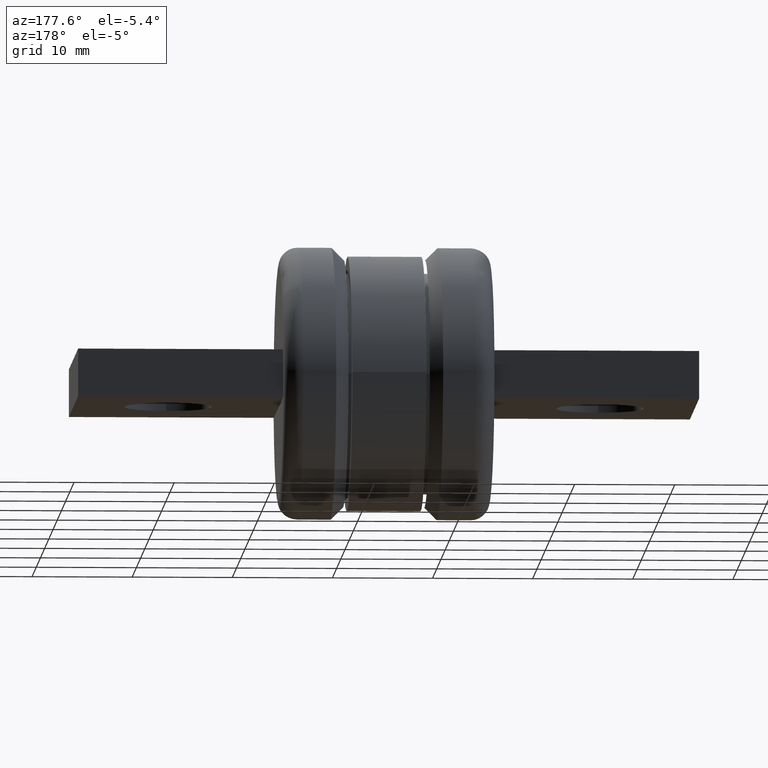
[diagram: clean part render]
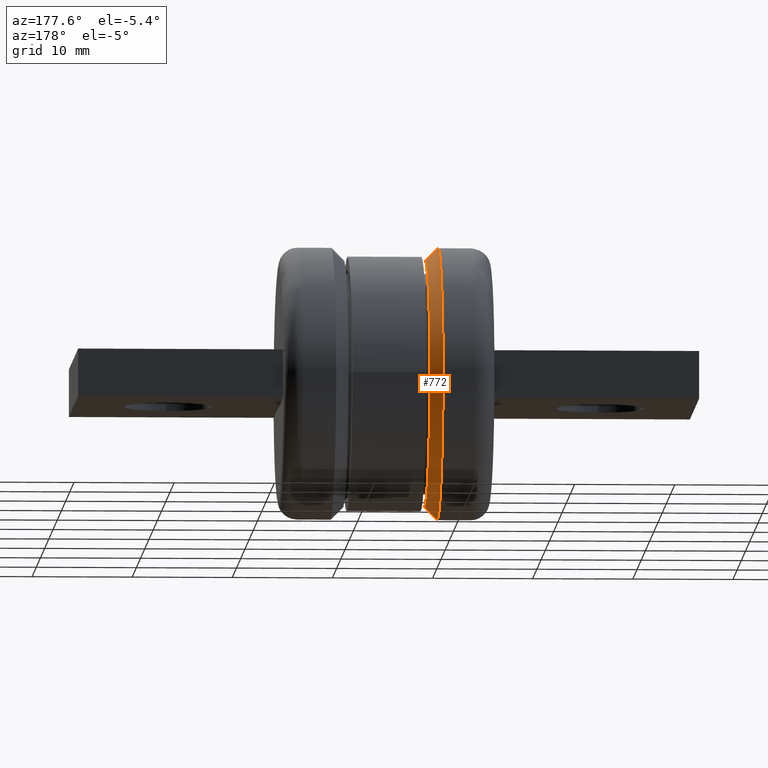
[diagram: same view with one face highlighted and labeled with its STEP entity id]
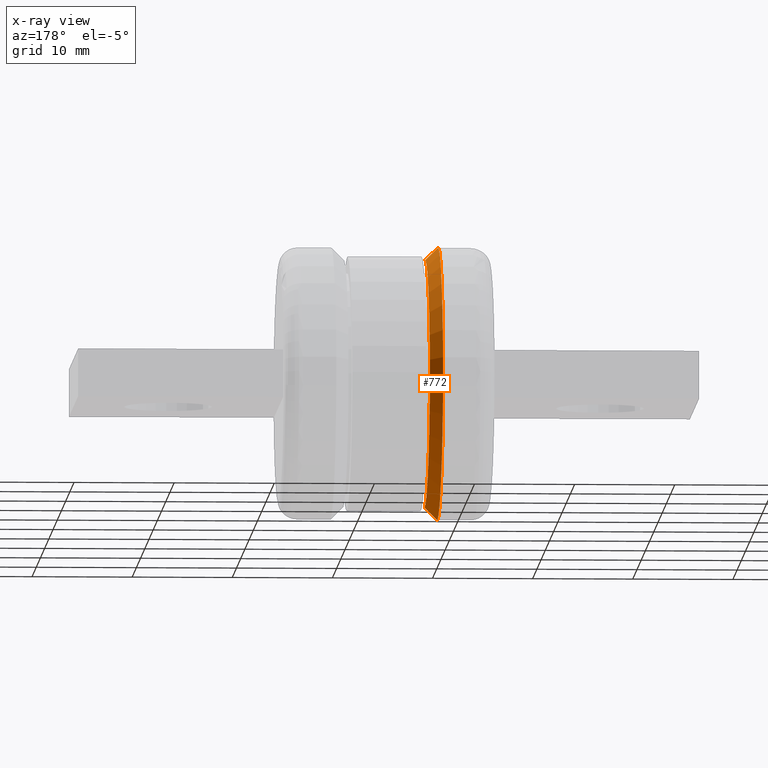
[diagram: x-ray of the same camera — body ghosted, the highlighted face saturated]
A machine part, auxiliary view. The second image highlights one B-rep face of the part: STEP entity #772.
The next image is the same camera in x-ray: the body ghosted, the highlighted face saturated — about 0% of this face is hidden behind the body in this view.
In plain terms, the highlighted conical surface has half-angle 45 deg.
Its self-contained STEP definition (entity closure, byte-faithful):
#13 = CARTESIAN_POINT ( 'NONE',  ( 0.1132856678774595400, -3.955347953525310100E-016, -0.4864999999999994300 ) ) ;
#27 = CARTESIAN_POINT ( 'NONE',  ( 0.1132856678774595400, -4.551138621310496600E-016, 0.4864999999999994300 ) ) ;
#59 = CARTESIAN_POINT ( 'NONE',  ( 0.1132856678774595400, -3.955347953525310100E-016, 0.0000000000000000000 ) ) ;
#127 = VERTEX_POINT ( 'NONE', #1593 ) ;
#150 = AXIS2_PLACEMENT_3D ( 'NONE', #1480, #325, #1115 ) ;
#187 = ORIENTED_EDGE ( 'NONE', *, *, #601, .F. ) ;
#325 = DIRECTION ( 'NONE',  ( -1.000000000000000000, 3.491481338843133400E-015, -4.930380657631323800E-032 ) ) ;
#326 = VECTOR ( 'NONE', #1160, 39.37007874015748900 ) ;
#388 = AXIS2_PLACEMENT_3D ( 'NONE', #1166, #1386, #645 ) ;
#432 = AXIS2_PLACEMENT_3D ( 'NONE', #59, #1356, #731 ) ;
#491 = CARTESIAN_POINT ( 'NONE',  ( 0.06328566787745884500, -2.209607284103718500E-016, 0.5364999999999999800 ) ) ;
#593 = CIRCLE ( 'NONE', #388, 0.4864999999999999300 ) ;
#601 = EDGE_CURVE ( 'NONE', #1379, #1437, #1699, .T. ) ;
#645 = DIRECTION ( 'NONE',  ( 0.0000000000000000000, 0.0000000000000000000, 1.000000000000000000 ) ) ;
#698 = EDGE_LOOP ( 'NONE', ( #1030, #1297, #1622, #187 ) ) ;
#704 = EDGE_CURVE ( 'NONE', #127, #1379, #1225, .T. ) ;
#731 = DIRECTION ( 'NONE',  ( 0.0000000000000000000, 0.0000000000000000000, -1.000000000000000000 ) ) ;
#772 = ADVANCED_FACE ( 'NONE', ( #791 ), #1594, .T. ) ;
#791 = FACE_OUTER_BOUND ( 'NONE', #698, .T. ) ;
#849 = EDGE_CURVE ( 'NONE', #1485, #127, #593, .T. ) ;
#853 = VECTOR ( 'NONE', #961, 39.37007874015748900 ) ;
#961 = DIRECTION ( 'NONE',  ( -0.7071067811865489100, 2.382254525458721400E-015, 0.7071067811865460200 ) ) ;
#1030 = ORIENTED_EDGE ( 'NONE', *, *, #704, .F. ) ;
#1080 = CARTESIAN_POINT ( 'NONE',  ( 0.1132856678774595400, -3.082477618814513900E-016, -0.4864999999999999300 ) ) ;
#1115 = DIRECTION ( 'NONE',  ( 0.0000000000000000000, 5.653234934468040500E-032, 1.000000000000000000 ) ) ;
#1160 = DIRECTION ( 'NONE',  ( -0.7071067811865489100, 2.468850131082270500E-015, -0.7071067811865460200 ) ) ;
#1166 = CARTESIAN_POINT ( 'NONE',  ( 0.1132856678774595400, -3.955347953525310100E-016, 0.0000000000000000000 ) ) ;
#1170 = CARTESIAN_POINT ( 'NONE',  ( 0.06328566787745884500, -5.971674215982479400E-017, -0.5364999999999999800 ) ) ;
#1225 = LINE ( 'NONE', #27, #853 ) ;
#1297 = ORIENTED_EDGE ( 'NONE', *, *, #849, .F. ) ;
#1356 = DIRECTION ( 'NONE',  ( -1.000000000000000000, 3.491481338843133400E-015, -4.930380657631323800E-032 ) ) ;
#1379 = VERTEX_POINT ( 'NONE', #491 ) ;
#1386 = DIRECTION ( 'NONE',  ( 1.000000000000000000, -3.491481338843133400E-015, 4.930380657631323800E-032 ) ) ;
#1437 = VERTEX_POINT ( 'NONE', #1170 ) ;
#1476 = LINE ( 'NONE', #13, #326 ) ;
#1480 = CARTESIAN_POINT ( 'NONE',  ( 0.06328566787745884500, -2.209607284103718700E-016, 0.0000000000000000000 ) ) ;
#1485 = VERTEX_POINT ( 'NONE', #1080 ) ;
#1502 = EDGE_CURVE ( 'NONE', #1485, #1437, #1476, .T. ) ;
#1593 = CARTESIAN_POINT ( 'NONE',  ( 0.1132856678774595400, -3.708884456578384900E-016, 0.4864999999999999300 ) ) ;
#1594 = CONICAL_SURFACE ( 'NONE', #432, 0.4864999999999994300, 0.7853981633974463900 ) ;
#1622 = ORIENTED_EDGE ( 'NONE', *, *, #1502, .T. ) ;
#1699 = CIRCLE ( 'NONE', #150, 0.5364999999999999800 ) ;